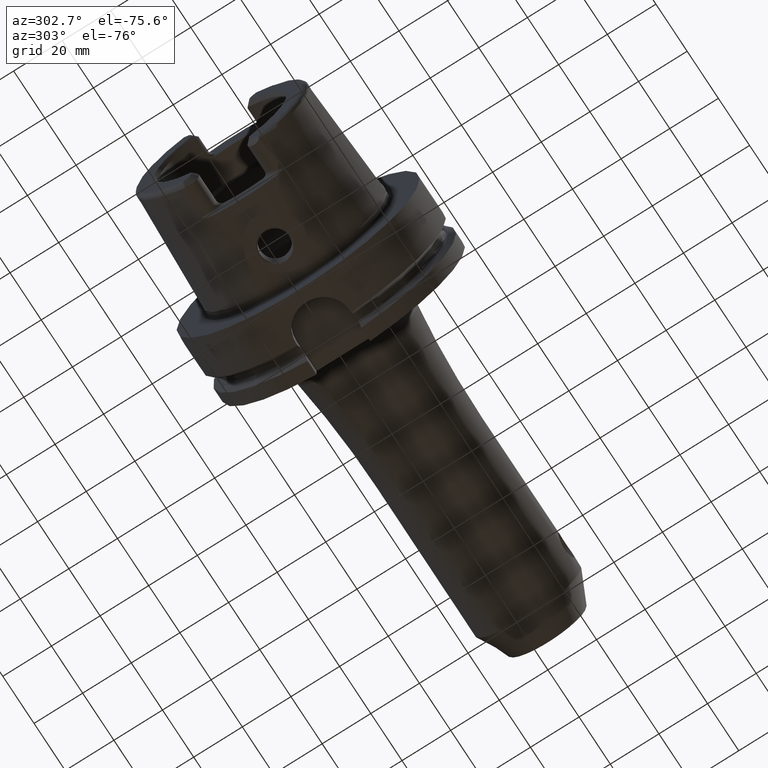
[diagram: clean part render]
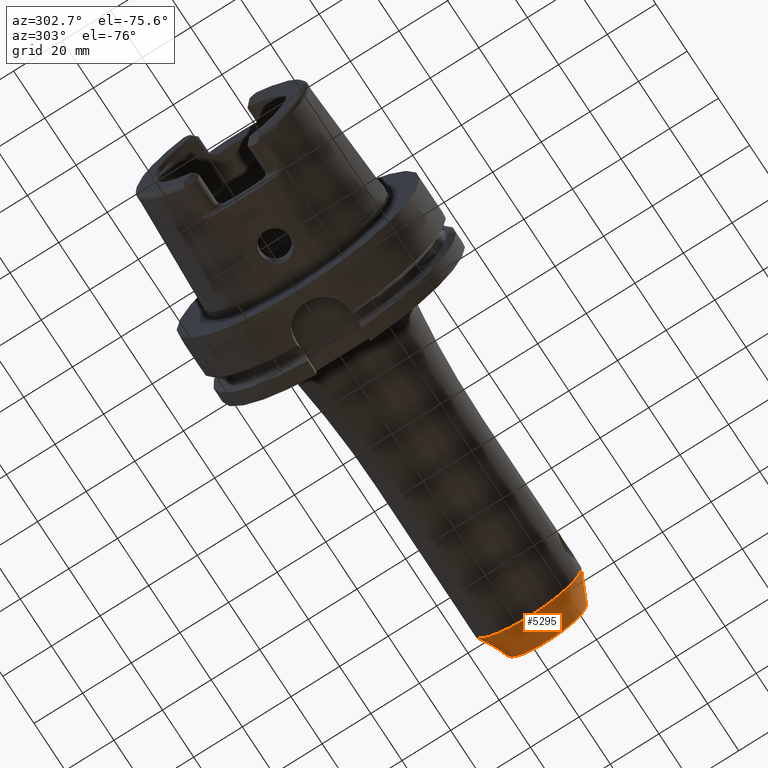
[diagram: same view with one face highlighted and labeled with its STEP entity id]
A machine part, auxiliary view. The second image highlights one B-rep face of the part: STEP entity #5295.
In plain terms, the highlighted conical surface has half-angle 25 deg.
Its self-contained STEP definition (entity closure, byte-faithful):
#1942=CARTESIAN_POINT('',(1.473338820760E2,0.E0,0.E0));
#1943=DIRECTION('',(-1.E0,0.E0,0.E0));
#1944=DIRECTION('',(0.E0,1.E0,0.E0));
#1945=AXIS2_PLACEMENT_3D('',#1942,#1943,#1944);
#1947=DIRECTION('',(-9.063077870367E-1,-4.226182617407E-1,-8.144637229333E-14));
#1948=VECTOR('',#1947,1.333844457546E1);
#1949=CARTESIAN_POINT('',(1.594226182617E2,-1.626923752623E1,
1.053507831078E-13));
#1950=LINE('',#1949,#1948);
#1951=CARTESIAN_POINT('',(1.594226182617E2,0.E0,0.E0));
#1952=DIRECTION('',(-1.E0,0.E0,0.E0));
#1953=DIRECTION('',(0.E0,1.E0,0.E0));
#1954=AXIS2_PLACEMENT_3D('',#1951,#1952,#1953);
#1956=DIRECTION('',(-9.063077870367E-1,4.226182617407E-1,8.120219612730E-14));
#1957=VECTOR('',#1956,1.333844457546E1);
#1958=CARTESIAN_POINT('',(1.594226182617E2,1.626923752623E1,
-1.058488848493E-13));
#1959=LINE('',#1958,#1957);
#3315=CARTESIAN_POINT('',(1.473338820760E2,2.190630778704E1,0.E0));
#3316=CARTESIAN_POINT('',(1.473338820760E2,-2.190630778704E1,0.E0));
#3317=VERTEX_POINT('',#3315);
#3318=VERTEX_POINT('',#3316);
#3319=CARTESIAN_POINT('',(1.594226182617E2,1.626923752623E1,0.E0));
#3320=CARTESIAN_POINT('',(1.594226182617E2,-1.626923752623E1,0.E0));
#3321=VERTEX_POINT('',#3319);
#3322=VERTEX_POINT('',#3320);
#5281=CARTESIAN_POINT('',(1.533782501689E2,0.E0,0.E0));
#5282=DIRECTION('',(-1.E0,0.E0,0.E0));
#5283=DIRECTION('',(0.E0,1.E0,0.E0));
#5284=AXIS2_PLACEMENT_3D('',#5281,#5282,#5283);
#5285=CONICAL_SURFACE('',#5284,1.908777265663E1,2.5E1);
#5286=ORIENTED_EDGE('',*,*,#5275,.T.);
#5288=ORIENTED_EDGE('',*,*,#5287,.F.);
#5290=ORIENTED_EDGE('',*,*,#5289,.F.);
#5292=ORIENTED_EDGE('',*,*,#5291,.T.);
#5293=EDGE_LOOP('',(#5286,#5288,#5290,#5292));
#5294=FACE_OUTER_BOUND('',#5293,.F.);
#5295=ADVANCED_FACE('',(#5294),#5285,.T.);
#1946=CIRCLE('',#1945,2.190630778704E1);
#1955=CIRCLE('',#1954,1.626923752623E1);
#5275=EDGE_CURVE('',#3317,#3318,#1946,.T.);
#5287=EDGE_CURVE('',#3322,#3318,#1950,.T.);
#5289=EDGE_CURVE('',#3321,#3322,#1955,.T.);
#5291=EDGE_CURVE('',#3321,#3317,#1959,.T.);